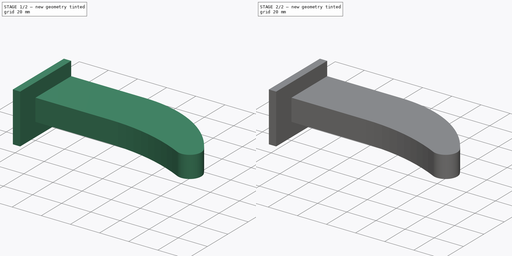
[diagram: build sequence overview — one tinted view per stage of 2, left to right]
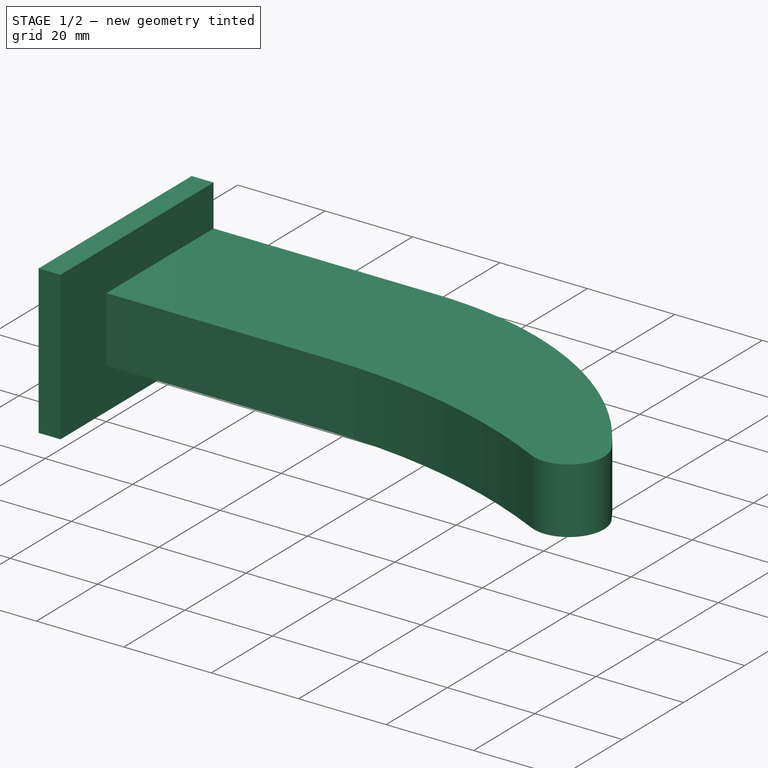
[diagram: stage 1 of 2 — iso view after this stage's code; geometry added in this stage tinted green]
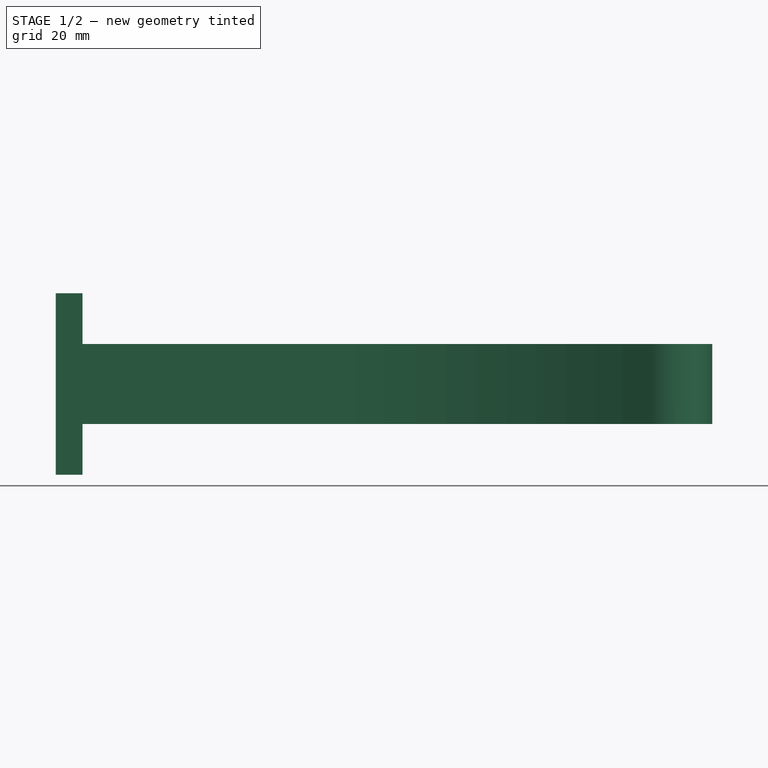
[diagram: stage 1 of 2 — front view after this stage's code; geometry added in this stage tinted green]
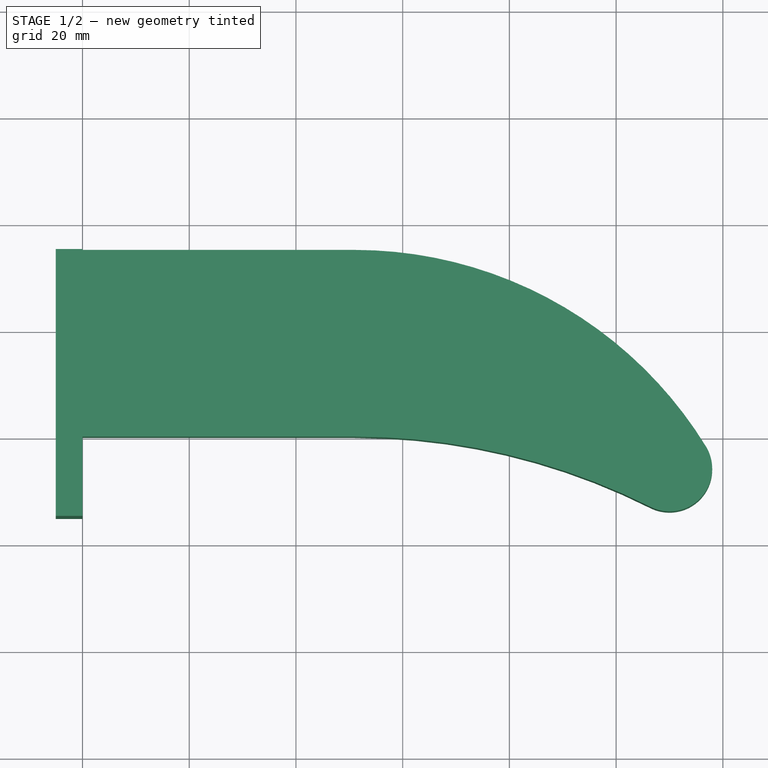
[diagram: stage 1 of 2 — top view after this stage's code; geometry added in this stage tinted green]
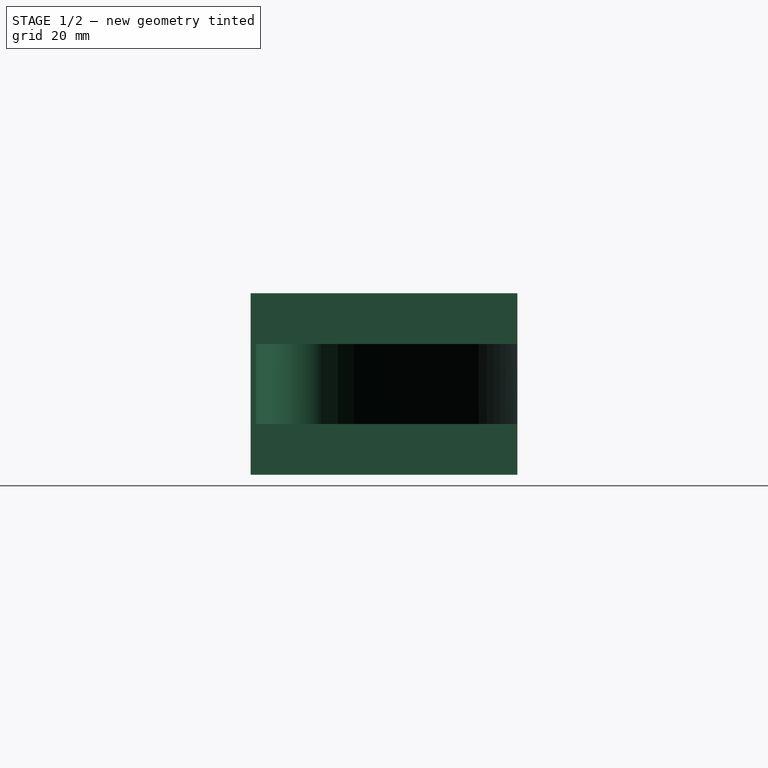
[diagram: stage 1 of 2 — right view after this stage's code; geometry added in this stage tinted green]
FCSTD DOCUMENT  (FreeCAD 0.16RUnknown)
Label: PaperCutter_Handle
License: All rights reserved
LicenseURL: http://en.wikipedia.org/wiki/All_rights_reserved
objects: Sketcher::SketchObject×3, PartDesign::Pad×2, PartDesign::Pocket×1, PartDesign::Draft×1
note: 10 computed .brp shape members not serialized (recipe doc carries the construction recipe); baked Part::Feature solids carry a one-line shape summary decoded from their .brp

FEATURE [Sketcher::SketchObject] Sketch
  sketch-geometry (6):
    g0: LineSegment StartX=0 StartY=0 StartZ=0 EndX=0 EndY=35 EndZ=0
    g1: LineSegment StartX=0 StartY=35 StartZ=0 EndX=51 EndY=35 EndZ=0
    g2: LineSegment StartX=0 StartY=0 StartZ=0 EndX=51 EndY=0 EndZ=0
    g3: ArcOfCircle CenterX=51 CenterY=-42.2424 CenterZ=0 NormalX=0 NormalY=0 NormalZ=1 Radius=77.2424 StartAngle=0.550853 EndAngle=1.5708
    g4: ArcOfCircle CenterX=51 CenterY=-123.321 CenterZ=0 NormalX=0 NormalY=0 NormalZ=1 Radius=123.321 StartAngle=1.10484 EndAngle=1.5708
    g5: ArcOfCircle CenterX=110 CenterY=-6 CenterZ=0 NormalX=0 NormalY=0 NormalZ=1 Radius=8 StartAngle=4.24643 EndAngle=6.83404
  constraints (20):
    c: Coincident(g0,g-1)
    c: PointOnObject(g0,g-2)
    c: Coincident(g1,g0)
    c: Horizontal(g1)
    c: Coincident(g2,g-1)
    c: PointOnObject(g2,g-1)
    c: Equal(g1,g2)
    c: DistanceX(g1,g1) = 51
    c: DistanceY(g0,g0) = 35
    c: Coincident(g3,g1)
    c: Coincident(g4,g2)
    c: Coincident(g5,g3)
    c: Coincident(g5,g4)
    c: Radius(g5) = 8
    c: Tangent(g4,g2)
    c: Tangent(g3,g1)
    c: Tangent(g5,g3)
    c: Tangent(g5,g4)
    c: DistanceX(g0,g5) = 110
    c: DistanceY(g5,g-1) = 6
FEATURE [PartDesign::Pad] Pad
  Length = 15
  Length2 = 100
  Sketch = -> Sketch
  Type = 0
FEATURE [Sketcher::SketchObject] Sketch001
  ExternalGeometry = -> [Pad]
  Placement = pos=(0,0,0) rot=(0.57735,-0.57735,-0.57735;2.0944rad)
  Support = -> Pad [Face1]
  sketch-geometry (6):
    g0: LineSegment StartX=-35 StartY=24.5 StartZ=0 EndX=15 EndY=24.5 EndZ=0
    g1: LineSegment StartX=15 StartY=24.5 StartZ=0 EndX=15 EndY=-9.5 EndZ=0
    g2: LineSegment StartX=15 StartY=-9.5 StartZ=0 EndX=-35 EndY=-9.5 EndZ=0
    g3: LineSegment StartX=-35 StartY=24.5 StartZ=0 EndX=-35 EndY=15 EndZ=0
    g4: LineSegment StartX=-35 StartY=0 StartZ=0 EndX=-35 EndY=-9.5 EndZ=0
    g5: LineSegment StartX=-35 StartY=15 StartZ=0 EndX=-35 EndY=0 EndZ=0
  constraints (16):
    c: Coincident(g0,g1)
    c: Coincident(g1,g2)
    c: Horizontal(g0)
    c: Horizontal(g2)
    c: Vertical(g1)
    c: DistanceX(g-1,g1) = 15
    c: DistanceY(g1,g1) = 34
    c: Coincident(g3,g0)
    c: Vertical(g3)
    c: Coincident(g4,g2)
    c: Vertical(g4)
    c: Coincident(g4,g-4)
    c: Coincident(g3,g-3)
    c: Coincident(g5,g3)
    c: Coincident(g5,g4)
    c: Equal(g3,g4)
FEATURE [PartDesign::Pad] Pad001
  Length = 5
  Length2 = 100
  Sketch = -> Sketch001
  Type = 0
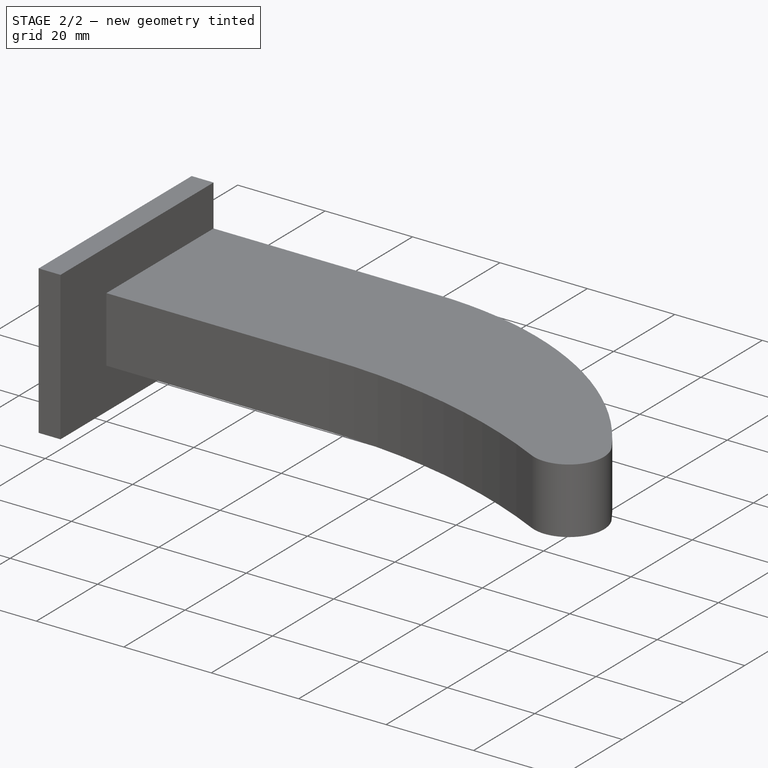
[diagram: stage 2 of 2 — iso view after this stage's code; geometry added in this stage tinted green]
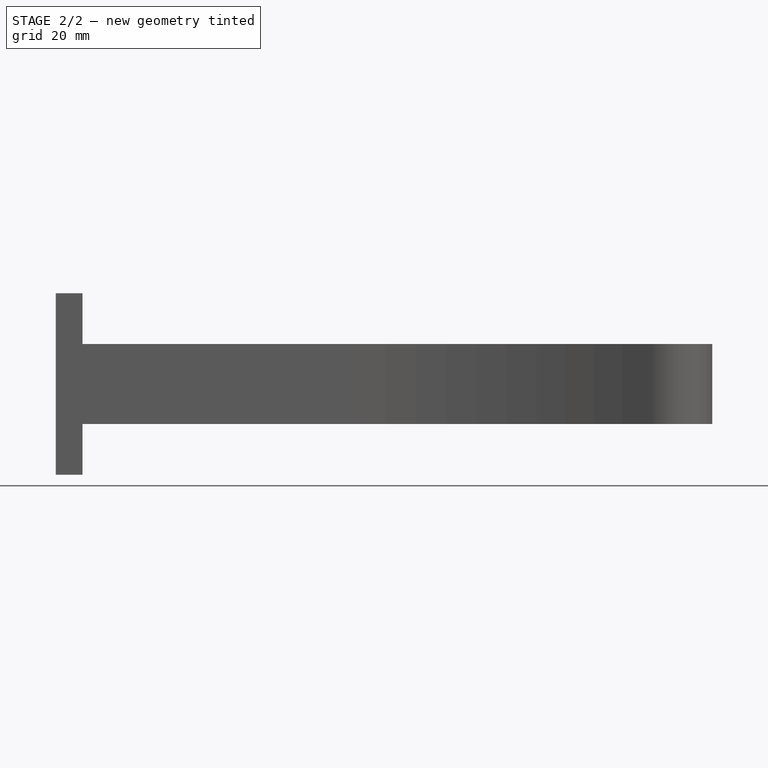
[diagram: stage 2 of 2 — front view after this stage's code; geometry added in this stage tinted green]
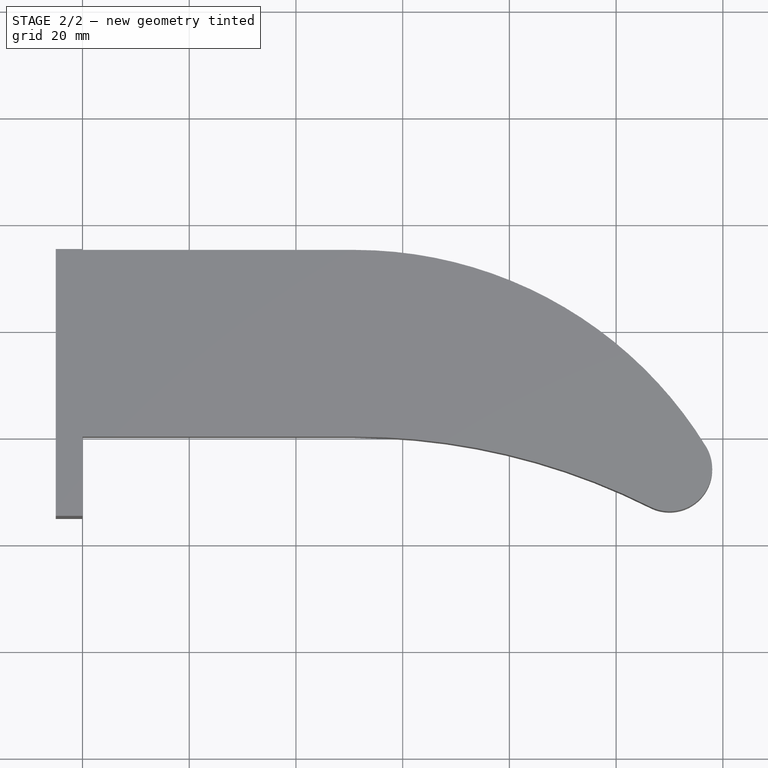
[diagram: stage 2 of 2 — top view after this stage's code; geometry added in this stage tinted green]
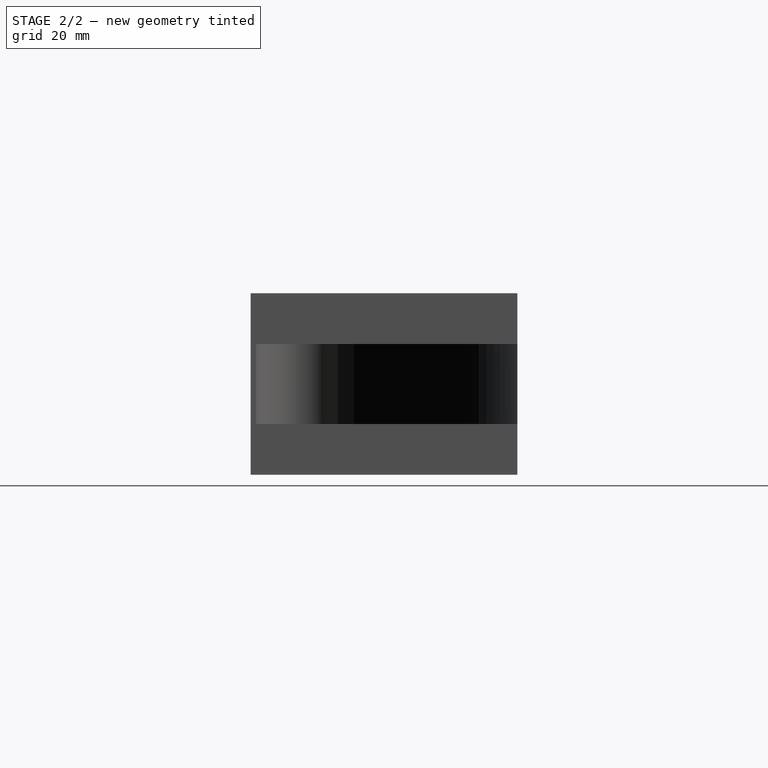
[diagram: stage 2 of 2 — right view after this stage's code; geometry added in this stage tinted green]
FEATURE [Sketcher::SketchObject] Sketch002
  ExternalGeometry = -> [Pad001]
  Placement = pos=(-5,0,0) rot=(0.57735,-0.57735,-0.57735;2.0944rad)
  Support = -> Pad001 [Face15]
  sketch-geometry (8):
    g0: LineSegment StartX=-31.25 StartY=12 StartZ=0 EndX=-3.75 EndY=12 EndZ=0
    g1: LineSegment StartX=-3.75 StartY=12 StartZ=0 EndX=-3.75 EndY=3 EndZ=0
    g2: LineSegment StartX=-3.75 StartY=3 StartZ=0 EndX=-31.25 EndY=3 EndZ=0
    g3: LineSegment StartX=-31.25 StartY=3 StartZ=0 EndX=-31.25 EndY=12 EndZ=0
    g4: LineSegment [constr] StartX=-35 StartY=15 StartZ=0 EndX=-31.25 EndY=12 EndZ=0
    g5: LineSegment [constr] StartX=-35 StartY=0 StartZ=0 EndX=-31.25 EndY=3 EndZ=0
    g6: LineSegment [constr] StartX=-35 StartY=3 StartZ=0 EndX=-31.25 EndY=3 EndZ=0
    g7: LineSegment [constr] StartX=-3.75 StartY=3 StartZ=0 EndX=0 EndY=3 EndZ=0
  constraints (24):
    c: Coincident(g0,g1)
    c: Coincident(g1,g2)
    c: Coincident(g2,g3)
    c: Coincident(g3,g0)
    c: Horizontal(g0)
    c: Horizontal(g2)
    c: Vertical(g1)
    c: Vertical(g3)
    c: Coincident(g4,g-3)
    c: Coincident(g4,g0)
    c: Coincident(g5,g-4)
    c: Coincident(g5,g2)
    c: Equal(g5,g4)
    c: DistanceY(g3,g3) = 9
    c: DistanceX(g0,g0) = 27.5
    c: PointOnObject(g6,g-5)
    c: PointOnObject(g6,g3)
    c: Horizontal(g6)
    c: PointOnObject(g7,g1)
    c: PointOnObject(g7,g-2)
    c: Horizontal(g7)
    c: Equal(g7,g6)
    c: Coincident(g6,g2)
    c: Coincident(g7,g1)
FEATURE [PartDesign::Pocket] Pocket
  Length = 51
  Sketch = -> Sketch002
  Type = 0
FEATURE [PartDesign::Draft] Draft
  Angle = 2.3
  Base = -> Pocket [Face17,Face19]
  NeutralPlane = -> Pocket [Edge38]
  PullDirection = -> Pocket [Edge40]
  Reversed = true
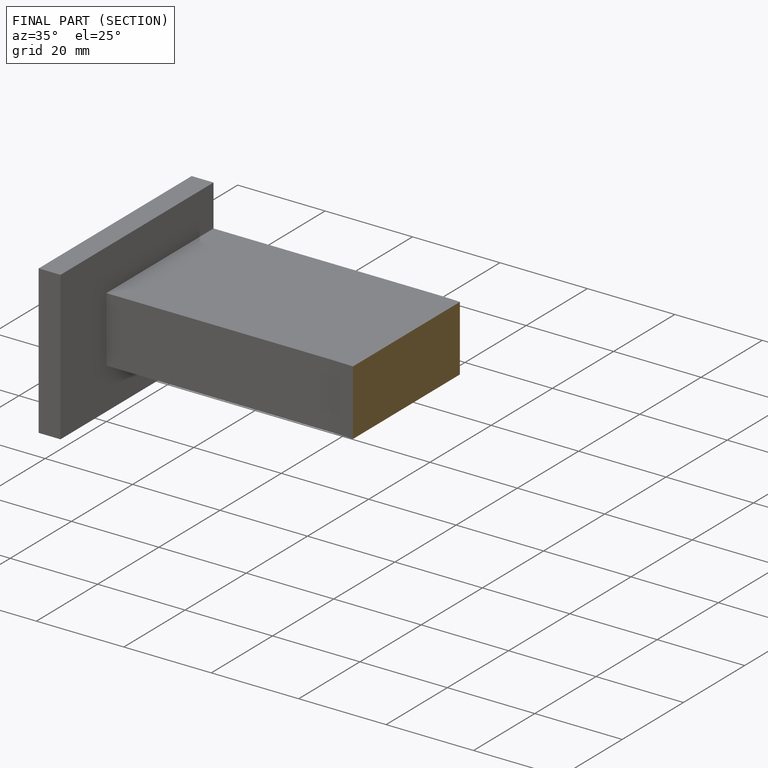
[diagram: finished part — half-section view (interior)]
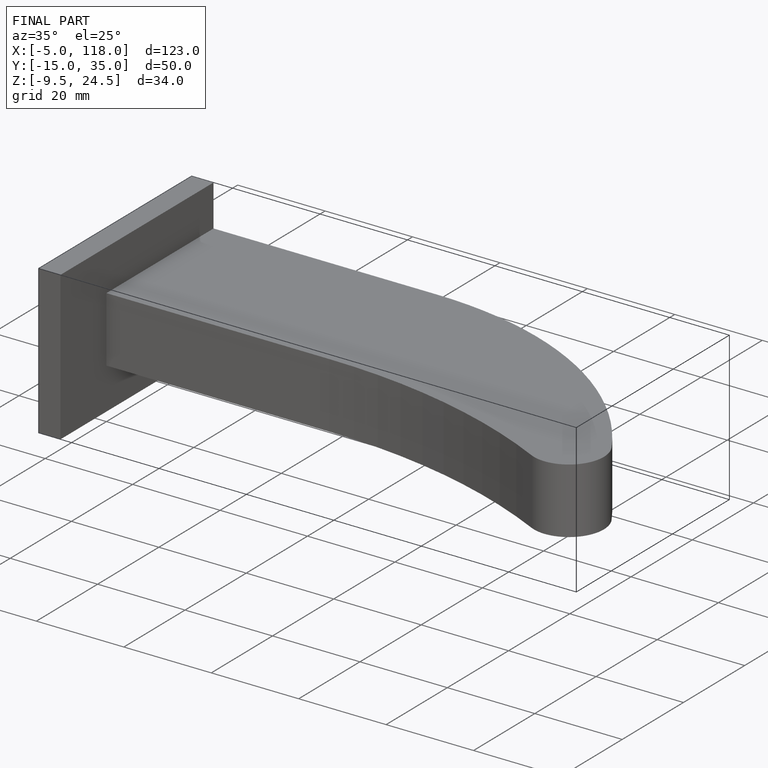
[diagram: finished part — iso view with bounding-box wireframe]
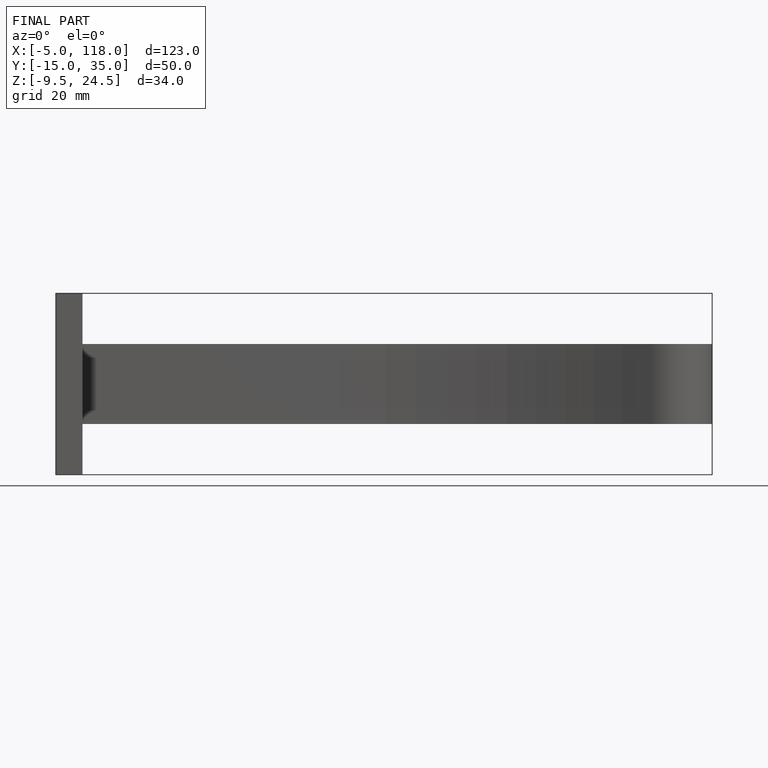
[diagram: finished part — front view with bounding-box wireframe]
